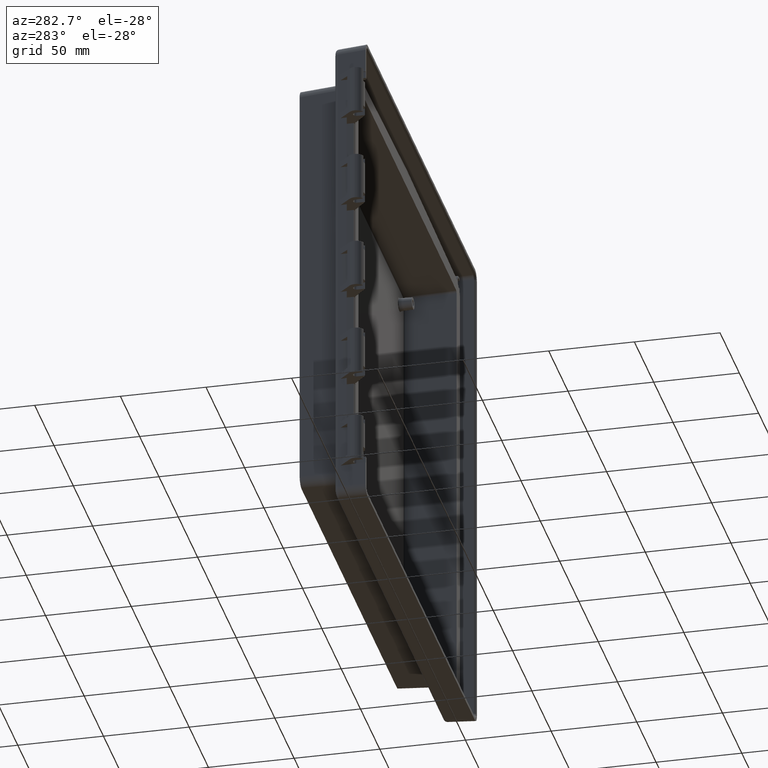
[diagram: clean part render]
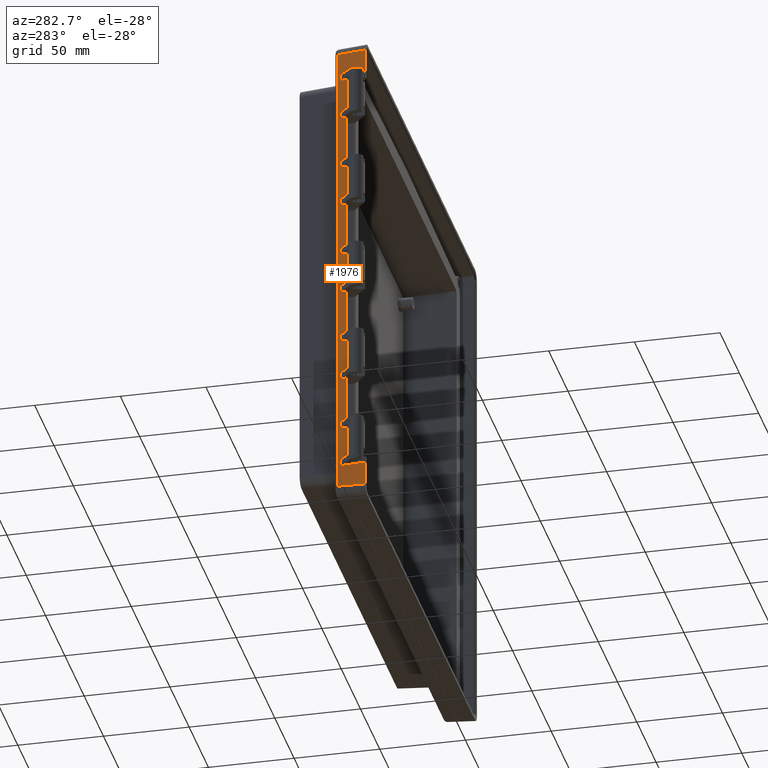
[diagram: same view with one face highlighted and labeled with its STEP entity id]
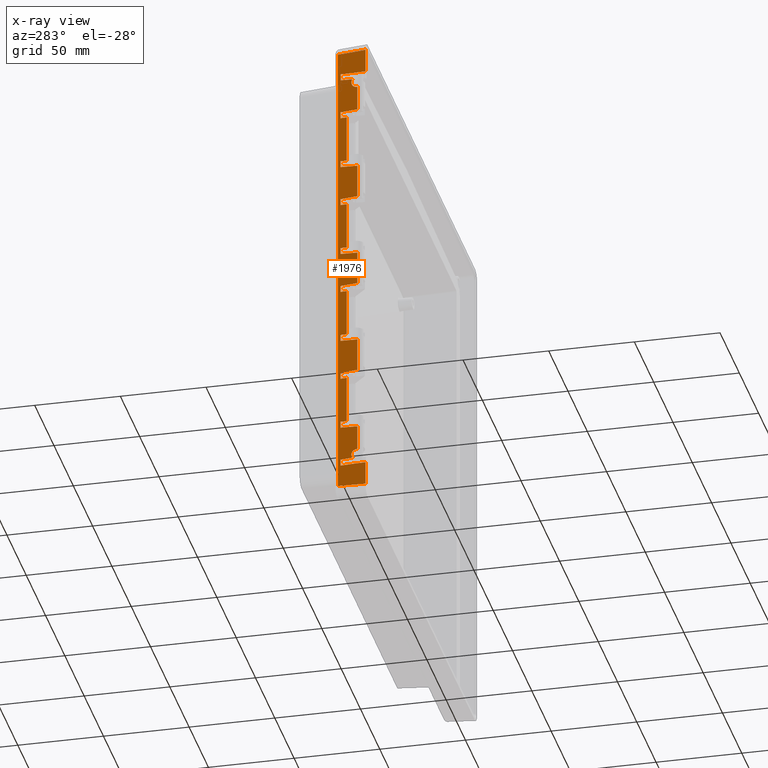
[diagram: x-ray of the same camera — body ghosted, the highlighted face saturated]
A machine part, auxiliary view. The second image highlights one B-rep face of the part: STEP entity #1976.
The next image is the same camera in x-ray: the body ghosted, the highlighted face saturated — about 0% of this face is hidden behind the body in this view.
In plain terms, the highlighted planar face has unit normal (-0.9986, 0.0523, 0).
Its self-contained STEP definition (entity closure, byte-faithful):
#516 = EDGE_CURVE ( 'NONE', #600, #594, #9780, .T. ) ;
#524 = VERTEX_POINT ( 'NONE', #9822 ) ;
#530 = VERTEX_POINT ( 'NONE', #9812 ) ;
#532 = EDGE_CURVE ( 'NONE', #530, #524, #9811, .T. ) ;
#540 = VERTEX_POINT ( 'NONE', #9856 ) ;
#546 = VERTEX_POINT ( 'NONE', #9846 ) ;
#548 = EDGE_CURVE ( 'NONE', #546, #540, #9845, .T. ) ;
#571 = VERTEX_POINT ( 'NONE', #9926 ) ;
#573 = EDGE_CURVE ( 'NONE', #571, #574, #9925, .T. ) ;
#574 = VERTEX_POINT ( 'NONE', #9921 ) ;
#578 = VERTEX_POINT ( 'NONE', #9915 ) ;
#584 = VERTEX_POINT ( 'NONE', #9905 ) ;
#586 = EDGE_CURVE ( 'NONE', #584, #578, #9904, .T. ) ;
#594 = VERTEX_POINT ( 'NONE', #9947 ) ;
#600 = VERTEX_POINT ( 'NONE', #9937 ) ;
#632 = EDGE_CURVE ( 'NONE', #574, #633, #10010, .T. ) ;
#633 = VERTEX_POINT ( 'NONE', #10003 ) ;
#730 = VERTEX_POINT ( 'NONE', #10189 ) ;
#732 = EDGE_CURVE ( 'NONE', #730, #752, #10188, .T. ) ;
#752 = VERTEX_POINT ( 'NONE', #10214 ) ;
#754 = EDGE_CURVE ( 'NONE', #755, #752, #10213, .T. ) ;
#755 = VERTEX_POINT ( 'NONE', #10272 ) ;
#819 = EDGE_CURVE ( 'NONE', #820, #19180, #10339, .T. ) ;
#820 = VERTEX_POINT ( 'NONE', #10404 ) ;
#827 = VERTEX_POINT ( 'NONE', #10391 ) ;
#834 = VERTEX_POINT ( 'NONE', #10423 ) ;
#892 = EDGE_CURVE ( 'NONE', #834, #827, #10525, .T. ) ;
#897 = VERTEX_POINT ( 'NONE', #10513 ) ;
#904 = VERTEX_POINT ( 'NONE', #10535 ) ;
#906 = EDGE_CURVE ( 'NONE', #904, #897, #10534, .T. ) ;
#966 = EDGE_CURVE ( 'NONE', #967, #968, #10634, .T. ) ;
#967 = VERTEX_POINT ( 'NONE', #10689 ) ;
#968 = VERTEX_POINT ( 'NONE', #10688 ) ;
#988 = VERTEX_POINT ( 'NONE', #10701 ) ;
#1050 = VERTEX_POINT ( 'NONE', #10873 ) ;
#1052 = EDGE_CURVE ( 'NONE', #1050, #988, #10872, .T. ) ;
#1056 = EDGE_CURVE ( 'NONE', #1057, #1058, #10866, .T. ) ;
#1057 = VERTEX_POINT ( 'NONE', #10857 ) ;
#1058 = VERTEX_POINT ( 'NONE', #10856 ) ;
#1131 = EDGE_CURVE ( 'NONE', #1132, #1133, #10989, .T. ) ;
#1132 = VERTEX_POINT ( 'NONE', #10980 ) ;
#1133 = VERTEX_POINT ( 'NONE', #10979 ) ;
#1141 = EDGE_CURVE ( 'NONE', #1142, #19085, #11035, .T. ) ;
#1142 = VERTEX_POINT ( 'NONE', #11026 ) ;
#1196 = EDGE_CURVE ( 'NONE', #1197, #1198, #11124, .T. ) ;
#1197 = VERTEX_POINT ( 'NONE', #11120 ) ;
#1198 = VERTEX_POINT ( 'NONE', #11119 ) ;
#1211 = VERTEX_POINT ( 'NONE', #11142 ) ;
#1218 = VERTEX_POINT ( 'NONE', #11174 ) ;
#1220 = EDGE_CURVE ( 'NONE', #1218, #1211, #11227, .T. ) ;
#1246 = VERTEX_POINT ( 'NONE', #11236 ) ;
#1248 = EDGE_CURVE ( 'NONE', #834, #1246, #11235, .T. ) ;
#1261 = EDGE_CURVE ( 'NONE', #1262, #820, #11265, .T. ) ;
#1262 = VERTEX_POINT ( 'NONE', #11261 ) ;
#1300 = EDGE_CURVE ( 'NONE', #571, #1262, #11336, .T. ) ;
#1328 = EDGE_CURVE ( 'NONE', #1329, #1057, #11404, .T. ) ;
#1329 = VERTEX_POINT ( 'NONE', #11400 ) ;
#1338 = VERTEX_POINT ( 'NONE', #11440 ) ;
#1340 = EDGE_CURVE ( 'NONE', #1050, #1338, #11439, .T. ) ;
#1360 = EDGE_CURVE ( 'NONE', #1361, #1132, #11522, .T. ) ;
#1361 = VERTEX_POINT ( 'NONE', #11518 ) ;
#1370 = VERTEX_POINT ( 'NONE', #11503 ) ;
#1422 = EDGE_CURVE ( 'NONE', #755, #1370, #11645, .T. ) ;
#1428 = EDGE_CURVE ( 'NONE', #1142, #1370, #11671, .T. ) ;
#1446 = EDGE_CURVE ( 'NONE', #1447, #1197, #11699, .T. ) ;
#1447 = VERTEX_POINT ( 'NONE', #11692 ) ;
#1456 = VERTEX_POINT ( 'NONE', #11677 ) ;
#1478 = EDGE_CURVE ( 'NONE', #1479, #967, #11776, .T. ) ;
#1479 = VERTEX_POINT ( 'NONE', #11772 ) ;
#1488 = VERTEX_POINT ( 'NONE', #11757 ) ;
#1516 = EDGE_CURVE ( 'NONE', #1218, #1456, #11851, .T. ) ;
#1548 = EDGE_CURVE ( 'NONE', #904, #1488, #12139, .T. ) ;
#1686 = VERTEX_POINT ( 'NONE', #12496 ) ;
#1688 = EDGE_CURVE ( 'NONE', #12035, #1686, #12495, .T. ) ;
#1720 = EDGE_CURVE ( 'NONE', #1721, #12009, #12550, .T. ) ;
#1721 = VERTEX_POINT ( 'NONE', #12546 ) ;
#1886 = EDGE_CURVE ( 'NONE', #1940, #1941, #12917, .T. ) ;
#1887 = ORIENTED_EDGE ( 'NONE', *, *, #1052, .F. ) ;
#1894 = EDGE_CURVE ( 'NONE', #1895, #1896, #12907, .T. ) ;
#1895 = VERTEX_POINT ( 'NONE', #12930 ) ;
#1896 = VERTEX_POINT ( 'NONE', #12929 ) ;
#1933 = EDGE_CURVE ( 'NONE', #1934, #19068, #13067, .T. ) ;
#1934 = VERTEX_POINT ( 'NONE', #13095 ) ;
#1940 = VERTEX_POINT ( 'NONE', #13136 ) ;
#1941 = VERTEX_POINT ( 'NONE', #13132 ) ;
#1950 = EDGE_CURVE ( 'NONE', #1951, #1952, #13158, .T. ) ;
#1951 = VERTEX_POINT ( 'NONE', #13184 ) ;
#1952 = VERTEX_POINT ( 'NONE', #13175 ) ;
#1961 = EDGE_CURVE ( 'NONE', #19045, #1962, #13233, .T. ) ;
#1962 = VERTEX_POINT ( 'NONE', #13229 ) ;
#1965 = ORIENTED_EDGE ( 'NONE', *, *, #19175, .F. ) ;
#1966 = ORIENTED_EDGE ( 'NONE', *, *, #19155, .F. ) ;
#1967 = ORIENTED_EDGE ( 'NONE', *, *, #1933, .F. ) ;
#1968 = ORIENTED_EDGE ( 'NONE', *, *, #2039, .T. ) ;
#1969 = VERTEX_POINT ( 'NONE', #13280 ) ;
#1976 = ADVANCED_FACE ( 'NONE', ( #13272 ), #13271, .T. ) ;
#1977 = EDGE_LOOP ( 'NONE', ( #1978, #1979, #1980, #2050, #19154, #19153, #19151, #19150, #19148, #1965, #1966, #1967, #1968, #2040, #2042, #2043, #2044, #2046, #2047, #2049, #2027, #2028, #2031, #2033, #2034, #2037, #1887, #2016, #2017, #2019, #2020, #2022, #2023, #2024, #2097, #2005, #2006, #2009, #2011, #2012, #2013, #2015, #2085, #2087, #2088, #2089, #2092, #2094, #2095, #2075, #2077, #2078, #2079, #2081, #2082, #2084, #2063, #2064, #2067, #2069, #2070, #2071, #2072, #2073, #2052, #2053, #2054, #2055, #2056 ) ) ;
#1978 = ORIENTED_EDGE ( 'NONE', *, *, #1720, .T. ) ;
#1979 = ORIENTED_EDGE ( 'NONE', *, *, #12033, .F. ) ;
#1980 = ORIENTED_EDGE ( 'NONE', *, *, #1688, .T. ) ;
#2004 = EDGE_CURVE ( 'NONE', #1952, #2026, #13315, .T. ) ;
#2005 = ORIENTED_EDGE ( 'NONE', *, *, #1950, .F. ) ;
#2006 = ORIENTED_EDGE ( 'NONE', *, *, #2007, .T. ) ;
#2007 = EDGE_CURVE ( 'NONE', #1951, #2008, #12892, .T. ) ;
#2008 = VERTEX_POINT ( 'NONE', #13086 ) ;
#2009 = ORIENTED_EDGE ( 'NONE', *, *, #2010, .F. ) ;
#2010 = EDGE_CURVE ( 'NONE', #897, #2008, #12890, .T. ) ;
#2011 = ORIENTED_EDGE ( 'NONE', *, *, #906, .F. ) ;
#2012 = ORIENTED_EDGE ( 'NONE', *, *, #1548, .T. ) ;
#2013 = ORIENTED_EDGE ( 'NONE', *, *, #2014, .F. ) ;
#2014 = EDGE_CURVE ( 'NONE', #578, #1488, #13358, .T. ) ;
#2015 = ORIENTED_EDGE ( 'NONE', *, *, #586, .F. ) ;
#2016 = ORIENTED_EDGE ( 'NONE', *, *, #1340, .T. ) ;
#2017 = ORIENTED_EDGE ( 'NONE', *, *, #2018, .F. ) ;
#2018 = EDGE_CURVE ( 'NONE', #594, #1338, #13354, .T. ) ;
#2019 = ORIENTED_EDGE ( 'NONE', *, *, #516, .F. ) ;
#2020 = ORIENTED_EDGE ( 'NONE', *, *, #2021, .F. ) ;
#2021 = EDGE_CURVE ( 'NONE', #1479, #600, #13350, .T. ) ;
#2022 = ORIENTED_EDGE ( 'NONE', *, *, #1478, .T. ) ;
#2023 = ORIENTED_EDGE ( 'NONE', *, *, #966, .T. ) ;
#2024 = ORIENTED_EDGE ( 'NONE', *, *, #2025, .T. ) ;
#2025 = EDGE_CURVE ( 'NONE', #968, #2026, #13346, .T. ) ;
#2026 = VERTEX_POINT ( 'NONE', #13345 ) ;
#2027 = ORIENTED_EDGE ( 'NONE', *, *, #1056, .T. ) ;
#2028 = ORIENTED_EDGE ( 'NONE', *, *, #2029, .T. ) ;
#2029 = EDGE_CURVE ( 'NONE', #1058, #2030, #13339, .T. ) ;
#2030 = VERTEX_POINT ( 'NONE', #13338 ) ;
#2031 = ORIENTED_EDGE ( 'NONE', *, *, #2032, .F. ) ;
#2032 = EDGE_CURVE ( 'NONE', #1941, #2030, #13340, .T. ) ;
#2033 = ORIENTED_EDGE ( 'NONE', *, *, #1886, .F. ) ;
#2034 = ORIENTED_EDGE ( 'NONE', *, *, #2035, .T. ) ;
#2035 = EDGE_CURVE ( 'NONE', #1940, #2036, #13375, .T. ) ;
#2036 = VERTEX_POINT ( 'NONE', #13374 ) ;
#2037 = ORIENTED_EDGE ( 'NONE', *, *, #2038, .F. ) ;
#2038 = EDGE_CURVE ( 'NONE', #988, #2036, #13369, .T. ) ;
#2039 = EDGE_CURVE ( 'NONE', #1934, #1969, #13364, .T. ) ;
#2040 = ORIENTED_EDGE ( 'NONE', *, *, #2041, .F. ) ;
#2041 = EDGE_CURVE ( 'NONE', #827, #1969, #13408, .T. ) ;
#2042 = ORIENTED_EDGE ( 'NONE', *, *, #892, .F. ) ;
#2043 = ORIENTED_EDGE ( 'NONE', *, *, #1248, .T. ) ;
#2044 = ORIENTED_EDGE ( 'NONE', *, *, #2045, .F. ) ;
#2045 = EDGE_CURVE ( 'NONE', #524, #1246, #13407, .T. ) ;
#2046 = ORIENTED_EDGE ( 'NONE', *, *, #532, .F. ) ;
#2047 = ORIENTED_EDGE ( 'NONE', *, *, #2048, .F. ) ;
#2048 = EDGE_CURVE ( 'NONE', #1329, #530, #13399, .T. ) ;
#2049 = ORIENTED_EDGE ( 'NONE', *, *, #1328, .T. ) ;
#2050 = ORIENTED_EDGE ( 'NONE', *, *, #2051, .T. ) ;
#2051 = EDGE_CURVE ( 'NONE', #1686, #633, #13395, .T. ) ;
#2052 = ORIENTED_EDGE ( 'NONE', *, *, #1428, .T. ) ;
#2053 = ORIENTED_EDGE ( 'NONE', *, *, #1422, .F. ) ;
#2054 = ORIENTED_EDGE ( 'NONE', *, *, #754, .T. ) ;
#2055 = ORIENTED_EDGE ( 'NONE', *, *, #732, .F. ) ;
#2056 = ORIENTED_EDGE ( 'NONE', *, *, #2057, .T. ) ;
#2057 = EDGE_CURVE ( 'NONE', #730, #1721, #13391, .T. ) ;
#2063 = ORIENTED_EDGE ( 'NONE', *, *, #1131, .T. ) ;
#2064 = ORIENTED_EDGE ( 'NONE', *, *, #2065, .T. ) ;
#2065 = EDGE_CURVE ( 'NONE', #1133, #2066, #13432, .T. ) ;
#2066 = VERTEX_POINT ( 'NONE', #13431 ) ;
#2067 = ORIENTED_EDGE ( 'NONE', *, *, #2068, .F. ) ;
#2068 = EDGE_CURVE ( 'NONE', #1962, #2066, #13433, .T. ) ;
#2069 = ORIENTED_EDGE ( 'NONE', *, *, #1961, .F. ) ;
#2070 = ORIENTED_EDGE ( 'NONE', *, *, #19061, .F. ) ;
#2071 = ORIENTED_EDGE ( 'NONE', *, *, #8061, .F. ) ;
#2072 = ORIENTED_EDGE ( 'NONE', *, *, #19079, .F. ) ;
#2073 = ORIENTED_EDGE ( 'NONE', *, *, #1141, .F. ) ;
#2074 = EDGE_CURVE ( 'NONE', #1895, #2096, #13423, .T. ) ;
#2075 = ORIENTED_EDGE ( 'NONE', *, *, #2076, .F. ) ;
#2076 = EDGE_CURVE ( 'NONE', #1211, #2096, #13418, .T. ) ;
#2077 = ORIENTED_EDGE ( 'NONE', *, *, #1220, .F. ) ;
#2078 = ORIENTED_EDGE ( 'NONE', *, *, #1516, .T. ) ;
#2079 = ORIENTED_EDGE ( 'NONE', *, *, #2080, .F. ) ;
#2080 = EDGE_CURVE ( 'NONE', #540, #1456, #13413, .T. ) ;
#2081 = ORIENTED_EDGE ( 'NONE', *, *, #548, .F. ) ;
#2082 = ORIENTED_EDGE ( 'NONE', *, *, #2083, .F. ) ;
#2083 = EDGE_CURVE ( 'NONE', #1361, #546, #13463, .T. ) ;
#2084 = ORIENTED_EDGE ( 'NONE', *, *, #1360, .T. ) ;
#2085 = ORIENTED_EDGE ( 'NONE', *, *, #2086, .F. ) ;
#2086 = EDGE_CURVE ( 'NONE', #1447, #584, #13459, .T. ) ;
#2087 = ORIENTED_EDGE ( 'NONE', *, *, #1446, .T. ) ;
#2088 = ORIENTED_EDGE ( 'NONE', *, *, #1196, .T. ) ;
#2089 = ORIENTED_EDGE ( 'NONE', *, *, #2090, .T. ) ;
#2090 = EDGE_CURVE ( 'NONE', #1198, #2091, #13454, .T. ) ;
#2091 = VERTEX_POINT ( 'NONE', #13453 ) ;
#2092 = ORIENTED_EDGE ( 'NONE', *, *, #2093, .F. ) ;
#2093 = EDGE_CURVE ( 'NONE', #1896, #2091, #13455, .T. ) ;
#2094 = ORIENTED_EDGE ( 'NONE', *, *, #1894, .F. ) ;
#2095 = ORIENTED_EDGE ( 'NONE', *, *, #2074, .T. ) ;
#2096 = VERTEX_POINT ( 'NONE', #13445 ) ;
#2097 = ORIENTED_EDGE ( 'NONE', *, *, #2004, .F. ) ;
#7997 = VERTEX_POINT ( 'NONE', #28046 ) ;
#8061 = EDGE_CURVE ( 'NONE', #8062, #7997, #28246, .T. ) ;
#8062 = VERTEX_POINT ( 'NONE', #28245 ) ;
#9772 = DIRECTION ( 'NONE',  ( 0.0000000000000000000, 1.554852818176321500E-017, -1.000000000000000000 ) ) ;
#9773 = VECTOR ( 'NONE', #9772, 1000.000000000000000 ) ;
#9774 = CARTESIAN_POINT ( 'NONE',  ( -143.6879957965046500, 3.091224350881810700, -27.99999999999996800 ) ) ;
#9780 = LINE ( 'NONE', #9774, #9773 ) ;
#9808 = DIRECTION ( 'NONE',  ( 0.0000000000000000000, 1.554852818176323000E-017, -1.000000000000000000 ) ) ;
#9809 = VECTOR ( 'NONE', #9808, 1000.000000000000000 ) ;
#9810 = CARTESIAN_POINT ( 'NONE',  ( -143.6879957965046800, 3.091224350881811600, -83.99999999999992900 ) ) ;
#9811 = LINE ( 'NONE', #9810, #9809 ) ;
#9812 = CARTESIAN_POINT ( 'NONE',  ( -143.6879957965044800, 3.091224350880998900, -70.05395752175230900 ) ) ;
#9822 = CARTESIAN_POINT ( 'NONE',  ( -143.6879957965047100, 3.091224350880925600, -97.94604247824769100 ) ) ;
#9842 = DIRECTION ( 'NONE',  ( 0.0000000000000000000, 0.0000000000000000000, -1.000000000000000000 ) ) ;
#9843 = VECTOR ( 'NONE', #9842, 1000.000000000000000 ) ;
#9844 = CARTESIAN_POINT ( 'NONE',  ( -143.6879957965049600, 3.091224350881709000, 83.99999999999980100 ) ) ;
#9845 = LINE ( 'NONE', #9844, #9843 ) ;
#9846 = CARTESIAN_POINT ( 'NONE',  ( -143.6879957965044000, 3.091224350881020200, 97.94604247824749200 ) ) ;
#9856 = CARTESIAN_POINT ( 'NONE',  ( -143.6879957965047700, 3.091224350880907000, 70.05395752175211000 ) ) ;
#9901 = DIRECTION ( 'NONE',  ( 0.0000000000000000000, 0.0000000000000000000, -1.000000000000000000 ) ) ;
#9902 = VECTOR ( 'NONE', #9901, 1000.000000000000000 ) ;
#9903 = CARTESIAN_POINT ( 'NONE',  ( -143.6879957965049600, 3.091224350881709000, 27.99999999999998200 ) ) ;
#9904 = LINE ( 'NONE', #9903, #9902 ) ;
#9905 = CARTESIAN_POINT ( 'NONE',  ( -143.6879957965044200, 3.091224350881024700, 41.94604247824748500 ) ) ;
#9915 = CARTESIAN_POINT ( 'NONE',  ( -143.6879957965047700, 3.091224350880913600, 14.05395752175211200 ) ) ;
#9921 = CARTESIAN_POINT ( 'NONE',  ( -144.0124641157774500, -3.099999999999245100, -125.9999999999996700 ) ) ;
#9922 = DIRECTION ( 'NONE',  ( 0.0000000000000000000, 0.0000000000000000000, -1.000000000000000000 ) ) ;
#9923 = VECTOR ( 'NONE', #9922, 1000.000000000000000 ) ;
#9924 = CARTESIAN_POINT ( 'NONE',  ( -144.0124641157774500, -3.099999999999245100, -125.9729446493608100 ) ) ;
#9925 = LINE ( 'NONE', #9924, #9923 ) ;
#9926 = CARTESIAN_POINT ( 'NONE',  ( -144.0124641157774500, -3.099999999999245100, -125.9458892987219700 ) ) ;
#9937 = CARTESIAN_POINT ( 'NONE',  ( -143.6879957965044500, 3.091224350881015300, -14.05395752175251500 ) ) ;
#9947 = CARTESIAN_POINT ( 'NONE',  ( -143.6879957965047400, 3.091224350880915800, -41.94604247824788200 ) ) ;
#10003 = CARTESIAN_POINT ( 'NONE',  ( -144.2692622342640000, -8.000000000000000000, -126.0000000000000000 ) ) ;
#10004 = DIRECTION ( 'NONE',  ( -0.05233595624295343800, -0.9986295347545733900, 0.0000000000000000000 ) ) ;
#10005 = VECTOR ( 'NONE', #10004, 1000.000000000000000 ) ;
#10006 = CARTESIAN_POINT ( 'NONE',  ( -144.1408631750210000, -5.550000000000832000, -126.0000000000000000 ) ) ;
#10010 = LINE ( 'NONE', #10006, #10005 ) ;
#10185 = DIRECTION ( 'NONE',  ( 0.05233595624293966400, 0.9986295347545741700, 0.0000000000000000000 ) ) ;
#10186 = VECTOR ( 'NONE', #10185, 1000.000000000000100 ) ;
#10187 = CARTESIAN_POINT ( 'NONE',  ( -144.1408631750208300, -5.549999999999636600, 126.0000000000000000 ) ) ;
#10188 = LINE ( 'NONE', #10187, #10186 ) ;
#10189 = CARTESIAN_POINT ( 'NONE',  ( -144.2692622342640000, -8.000000000000000000, 126.0000000000000000 ) ) ;
#10210 = DIRECTION ( 'NONE',  ( 0.0000000000000000000, 0.0000000000000000000, 1.000000000000000000 ) ) ;
#10211 = VECTOR ( 'NONE', #10210, 1000.000000000000000 ) ;
#10212 = CARTESIAN_POINT ( 'NONE',  ( -144.0124641157773900, -3.099999999999295300, 125.9729446493612100 ) ) ;
#10213 = LINE ( 'NONE', #10212, #10211 ) ;
#10214 = CARTESIAN_POINT ( 'NONE',  ( -144.0124641157773900, -3.099999999999295300, 126.0000000000000000 ) ) ;
#10272 = CARTESIAN_POINT ( 'NONE',  ( -144.0124641157773900, -3.099999999999295300, 125.9458892987223900 ) ) ;
#10336 = DIRECTION ( 'NONE',  ( -0.05226442768871258900, -0.9972646886342373400, 0.05226442768871456700 ) ) ;
#10337 = VECTOR ( 'NONE', #10336, 1000.000000000000100 ) ;
#10338 = CARTESIAN_POINT ( 'NONE',  ( -143.6794443393783100, 3.254395873189117600, -122.1705556606212000 ) ) ;
#10339 = LINE ( 'NONE', #10338, #10337 ) ;
#10391 = CARTESIAN_POINT ( 'NONE',  ( -144.0176754571400000, -3.000561683138390100, -102.1571355472182500 ) ) ;
#10404 = CARTESIAN_POINT ( 'NONE',  ( -143.4952572665772300, 6.768894585419558600, -122.3547427334223100 ) ) ;
#10423 = CARTESIAN_POINT ( 'NONE',  ( -143.4952572665772000, 6.768894585419557700, -101.6452572665770600 ) ) ;
#10513 = CARTESIAN_POINT ( 'NONE',  ( -144.0176754571400000, -3.000561683138390100, 9.842864452781578100 ) ) ;
#10520 = CARTESIAN_POINT ( 'NONE',  ( -144.0176754571400000, -3.000561683138390100, -102.1571355472182500 ) ) ;
#10521 = CARTESIAN_POINT ( 'NONE',  ( -143.8400712044743000, 0.2557448930623055800, -101.9865969780916300 ) ) ;
#10522 = CARTESIAN_POINT ( 'NONE',  ( -143.6676642355257600, 3.512319739240932700, -101.8159271223343700 ) ) ;
#10523 = CARTESIAN_POINT ( 'NONE',  ( -143.4952572665772000, 6.768894585419557700, -101.6452572665770600 ) ) ;
#10525 = B_SPLINE_CURVE_WITH_KNOTS ( 'NONE', 3,
 ( #10523, #10522, #10521, #10520 ),
 .UNSPECIFIED., .F., .F.,
 ( 4, 4 ),
 ( 0.0000000000000000000, 1.000000000000000000 ),
 .UNSPECIFIED. ) ;
#10534 = B_SPLINE_CURVE_WITH_KNOTS ( 'NONE', 3,
 ( #10599, #10598, #10597, #10596 ),
 .UNSPECIFIED., .F., .F.,
 ( 4, 4 ),
 ( 0.0000000000000000000, 1.000000000000000000 ),
 .UNSPECIFIED. ) ;
#10535 = CARTESIAN_POINT ( 'NONE',  ( -143.4952572665772000, 6.768894585419556800, 10.35474273342282500 ) ) ;
#10596 = CARTESIAN_POINT ( 'NONE',  ( -144.0176754571400000, -3.000561683138390100, 9.842864452781578100 ) ) ;
#10597 = CARTESIAN_POINT ( 'NONE',  ( -143.8400712044743000, 0.2557448930623064100, 10.01340302190820500 ) ) ;
#10598 = CARTESIAN_POINT ( 'NONE',  ( -143.6676642355257600, 3.512319739240935300, 10.18407287766543800 ) ) ;
#10599 = CARTESIAN_POINT ( 'NONE',  ( -143.4952572665772000, 6.768894585419556800, 10.35474273342282500 ) ) ;
#10632 = VECTOR ( 'NONE', #10690, 1000.000000000000100 ) ;
#10633 = CARTESIAN_POINT ( 'NONE',  ( -143.7512692751373600, 1.883894456382976900, -10.09873786193101400 ) ) ;
#10634 = LINE ( 'NONE', #10633, #10632 ) ;
#10688 = CARTESIAN_POINT ( 'NONE',  ( -144.0176754571400000, -3.000561683138390100, -9.842761499614376000 ) ) ;
#10689 = CARTESIAN_POINT ( 'NONE',  ( -143.4952572665772000, 6.768894585419556800, -10.35474273342288100 ) ) ;
#10690 = DIRECTION ( 'NONE',  ( -0.05226443166861414300, -0.9972647645752443800, 0.05226297464782353500 ) ) ;
#10701 = CARTESIAN_POINT ( 'NONE',  ( -144.0176754571400000, -3.000561683138390100, -46.15713554721845200 ) ) ;
#10856 = CARTESIAN_POINT ( 'NONE',  ( -144.0176754571400000, -3.000561683138390100, -65.84276149961438300 ) ) ;
#10857 = CARTESIAN_POINT ( 'NONE',  ( -143.4952572665772000, 6.768894585419557700, -66.35474273342282500 ) ) ;
#10858 = DIRECTION ( 'NONE',  ( -0.05226443166861414300, -0.9972647645752443800, 0.05226297464782372200 ) ) ;
#10859 = VECTOR ( 'NONE', #10858, 1000.000000000000100 ) ;
#10860 = CARTESIAN_POINT ( 'NONE',  ( -143.7512692751373600, 1.883894456382977800, -66.09873786193095700 ) ) ;
#10866 = LINE ( 'NONE', #10860, #10859 ) ;
#10867 = CARTESIAN_POINT ( 'NONE',  ( -144.0176754571400000, -3.000561683138390100, -46.15713554721845200 ) ) ;
#10868 = CARTESIAN_POINT ( 'NONE',  ( -143.8400712044743000, 0.2557448930623055800, -45.98659697809182500 ) ) ;
#10869 = CARTESIAN_POINT ( 'NONE',  ( -143.6676642355257600, 3.512319739240938000, -45.81592712233459300 ) ) ;
#10870 = CARTESIAN_POINT ( 'NONE',  ( -143.4952572665772000, 6.768894585419557700, -45.64525726657711900 ) ) ;
#10872 = B_SPLINE_CURVE_WITH_KNOTS ( 'NONE', 3,
 ( #10870, #10869, #10868, #10867 ),
 .UNSPECIFIED., .F., .F.,
 ( 4, 4 ),
 ( 0.0000000000000000000, 1.000000000000000000 ),
 .UNSPECIFIED. ) ;
#10873 = CARTESIAN_POINT ( 'NONE',  ( -143.4952572665772000, 6.768894585419557700, -45.64525726657711900 ) ) ;
#10979 = CARTESIAN_POINT ( 'NONE',  ( -144.0176754571390100, -3.000561683138390100, 102.1572385003858300 ) ) ;
#10980 = CARTESIAN_POINT ( 'NONE',  ( -143.4952572665771700, 6.768894585419555900, 101.6452572665773900 ) ) ;
#10981 = DIRECTION ( 'NONE',  ( -0.05226443166861450400, -0.9972647645752453800, 0.05226297464780423800 ) ) ;
#10982 = VECTOR ( 'NONE', #10981, 1000.000000000000000 ) ;
#10983 = CARTESIAN_POINT ( 'NONE',  ( -143.7512692751373300, 1.883894456383004500, 101.9012621380691600 ) ) ;
#10989 = LINE ( 'NONE', #10983, #10982 ) ;
#11026 = CARTESIAN_POINT ( 'NONE',  ( -143.4952572665771700, 6.768894585419555000, 122.3547427334226800 ) ) ;
#11027 = DIRECTION ( 'NONE',  ( -0.05226442768871308900, -0.9972646886342373400, -0.05226442768871308900 ) ) ;
#11028 = VECTOR ( 'NONE', #11027, 1000.000000000000200 ) ;
#11029 = CARTESIAN_POINT ( 'NONE',  ( -143.6794443393782800, 3.254395873189146900, 122.1705556606215900 ) ) ;
#11035 = LINE ( 'NONE', #11029, #11028 ) ;
#11119 = CARTESIAN_POINT ( 'NONE',  ( -144.0176754571390100, -3.000561683138390100, 46.15723850038562400 ) ) ;
#11120 = CARTESIAN_POINT ( 'NONE',  ( -143.4952572665771700, 6.768894585419555900, 45.64525726657707600 ) ) ;
#11121 = DIRECTION ( 'NONE',  ( -0.05226443166861442100, -0.9972647645752443800, 0.05226297464782257000 ) ) ;
#11122 = VECTOR ( 'NONE', #11121, 1000.000000000000100 ) ;
#11123 = CARTESIAN_POINT ( 'NONE',  ( -143.7512692751373300, 1.883894456383002200, 45.90126213806893700 ) ) ;
#11124 = LINE ( 'NONE', #11123, #11122 ) ;
#11142 = CARTESIAN_POINT ( 'NONE',  ( -144.0176754571400000, -3.000561683138390100, 65.84286445278155500 ) ) ;
#11174 = CARTESIAN_POINT ( 'NONE',  ( -143.4952572665771700, 6.768894585419555900, 66.35474273342272500 ) ) ;
#11223 = CARTESIAN_POINT ( 'NONE',  ( -144.0176754571400000, -3.000561683138390100, 65.84286445278155500 ) ) ;
#11224 = CARTESIAN_POINT ( 'NONE',  ( -143.8400712044743000, 0.2557448930623042500, 66.01340302190817500 ) ) ;
#11225 = CARTESIAN_POINT ( 'NONE',  ( -143.6676642355257600, 3.512319739240933100, 66.18407287766541500 ) ) ;
#11226 = CARTESIAN_POINT ( 'NONE',  ( -143.4952572665771700, 6.768894585419555900, 66.35474273342272500 ) ) ;
#11227 = B_SPLINE_CURVE_WITH_KNOTS ( 'NONE', 3,
 ( #11226, #11225, #11224, #11223 ),
 .UNSPECIFIED., .F., .F.,
 ( 4, 4 ),
 ( 0.0000000000000000000, 1.000000000000000000 ),
 .UNSPECIFIED. ) ;
#11232 = DIRECTION ( 'NONE',  ( 0.0000000000000000000, 0.0000000000000000000, 1.000000000000000000 ) ) ;
#11233 = VECTOR ( 'NONE', #11232, 1000.000000000000000 ) ;
#11234 = CARTESIAN_POINT ( 'NONE',  ( -143.4952572665772000, 6.768894585419557700, -99.76355288604810300 ) ) ;
#11235 = LINE ( 'NONE', #11234, #11233 ) ;
#11236 = CARTESIAN_POINT ( 'NONE',  ( -143.4952572665772000, 6.768894585419238800, -97.88184850551924400 ) ) ;
#11261 = CARTESIAN_POINT ( 'NONE',  ( -143.4952572665772300, 6.768894585419558600, -126.1181514944802200 ) ) ;
#11262 = DIRECTION ( 'NONE',  ( 0.0000000000000000000, 0.0000000000000000000, 1.000000000000000000 ) ) ;
#11263 = VECTOR ( 'NONE', #11262, 1000.000000000000000 ) ;
#11264 = CARTESIAN_POINT ( 'NONE',  ( -143.4952572665772300, 6.768894585419558600, -124.2364471139512700 ) ) ;
#11265 = LINE ( 'NONE', #11264, #11263 ) ;
#11333 = DIRECTION ( 'NONE',  ( 0.05232800705137903600, 0.9984778551437666300, -0.01742849579092482400 ) ) ;
#11334 = VECTOR ( 'NONE', #11333, 1000.000000000000100 ) ;
#11335 = CARTESIAN_POINT ( 'NONE',  ( -143.7538606911773500, 1.834447292710156500, -126.0320203966011100 ) ) ;
#11336 = LINE ( 'NONE', #11335, #11334 ) ;
#11400 = CARTESIAN_POINT ( 'NONE',  ( -143.4952572665769400, 6.768894585419500800, -70.11815149448075600 ) ) ;
#11401 = DIRECTION ( 'NONE',  ( 0.0000000000000000000, 0.0000000000000000000, 1.000000000000000000 ) ) ;
#11402 = VECTOR ( 'NONE', #11401, 1000.000000000000000 ) ;
#11403 = CARTESIAN_POINT ( 'NONE',  ( -143.4952572665770000, 6.768894585419549700, -68.23644711395169800 ) ) ;
#11404 = LINE ( 'NONE', #11403, #11402 ) ;
#11436 = DIRECTION ( 'NONE',  ( 0.0000000000000000000, 0.0000000000000000000, 1.000000000000000000 ) ) ;
#11437 = VECTOR ( 'NONE', #11436, 1000.000000000000000 ) ;
#11438 = CARTESIAN_POINT ( 'NONE',  ( -143.4952572665772000, 6.768894585419557700, -43.76355288604816000 ) ) ;
#11439 = LINE ( 'NONE', #11438, #11437 ) ;
#11440 = CARTESIAN_POINT ( 'NONE',  ( -143.4952572665772300, 6.768894585419206900, -41.88184850551944300 ) ) ;
#11503 = CARTESIAN_POINT ( 'NONE',  ( -143.4952572665771700, 6.768894585419555000, 126.1181514944806300 ) ) ;
#11518 = CARTESIAN_POINT ( 'NONE',  ( -143.4952572665768600, 6.768894585419506200, 97.88184850551904500 ) ) ;
#11519 = DIRECTION ( 'NONE',  ( 0.0000000000000000000, 0.0000000000000000000, 1.000000000000000000 ) ) ;
#11520 = VECTOR ( 'NONE', #11519, 1000.000000000000000 ) ;
#11521 = CARTESIAN_POINT ( 'NONE',  ( -143.4952572665770000, 6.768894585419549700, 99.76355288604851500 ) ) ;
#11522 = LINE ( 'NONE', #11521, #11520 ) ;
#11613 = DIRECTION ( 'NONE',  ( 0.05232800705137877900, 0.9984778551437666300, 0.01742849579092474500 ) ) ;
#11614 = VECTOR ( 'NONE', #11613, 1000.000000000000000 ) ;
#11615 = CARTESIAN_POINT ( 'NONE',  ( -143.7538606911772900, 1.834447292710129900, 126.0320203966015000 ) ) ;
#11645 = LINE ( 'NONE', #11615, #11614 ) ;
#11668 = DIRECTION ( 'NONE',  ( 0.0000000000000000000, 0.0000000000000000000, 1.000000000000000000 ) ) ;
#11669 = VECTOR ( 'NONE', #11668, 1000.000000000000000 ) ;
#11670 = CARTESIAN_POINT ( 'NONE',  ( -143.4952572665771700, 6.768894585419555000, 124.2364471139516600 ) ) ;
#11671 = LINE ( 'NONE', #11670, #11669 ) ;
#11677 = CARTESIAN_POINT ( 'NONE',  ( -143.4952572665772500, 6.768894585419079800, 70.11815149448055700 ) ) ;
#11692 = CARTESIAN_POINT ( 'NONE',  ( -143.4952572665768900, 6.768894585419476000, 41.88184850551904500 ) ) ;
#11693 = DIRECTION ( 'NONE',  ( 0.0000000000000000000, 0.0000000000000000000, 1.000000000000000000 ) ) ;
#11694 = VECTOR ( 'NONE', #11693, 1000.000000000000000 ) ;
#11695 = CARTESIAN_POINT ( 'NONE',  ( -143.4952572665770000, 6.768894585419549700, 43.76355288604821700 ) ) ;
#11699 = LINE ( 'NONE', #11695, #11694 ) ;
#11757 = CARTESIAN_POINT ( 'NONE',  ( -143.4952572665772500, 6.768894585419201500, 14.11815149448055200 ) ) ;
#11772 = CARTESIAN_POINT ( 'NONE',  ( -143.4952572665769100, 6.768894585419561200, -14.11815149448096000 ) ) ;
#11773 = DIRECTION ( 'NONE',  ( 0.0000000000000000000, 0.0000000000000000000, 1.000000000000000000 ) ) ;
#11774 = VECTOR ( 'NONE', #11773, 1000.000000000000000 ) ;
#11775 = CARTESIAN_POINT ( 'NONE',  ( -143.4952572665770000, 6.768894585419549700, -12.23644711395195700 ) ) ;
#11776 = LINE ( 'NONE', #11775, #11774 ) ;
#11848 = DIRECTION ( 'NONE',  ( 0.0000000000000000000, 0.0000000000000000000, 1.000000000000000000 ) ) ;
#11849 = VECTOR ( 'NONE', #11848, 1000.000000000000000 ) ;
#11850 = CARTESIAN_POINT ( 'NONE',  ( -143.4952572665771700, 6.768894585419555900, 68.23644711395171200 ) ) ;
#11851 = LINE ( 'NONE', #11850, #11849 ) ;
#12009 = VERTEX_POINT ( 'NONE', #28974 ) ;
#12033 = EDGE_CURVE ( 'NONE', #12035, #12009, #29103, .T. ) ;
#12035 = VERTEX_POINT ( 'NONE', #29099 ) ;
#12136 = DIRECTION ( 'NONE',  ( 0.0000000000000000000, 0.0000000000000000000, 1.000000000000000000 ) ) ;
#12137 = VECTOR ( 'NONE', #12136, 1000.000000000000000 ) ;
#12138 = CARTESIAN_POINT ( 'NONE',  ( -143.4952572665772000, 6.768894585419556800, 12.23644711395178300 ) ) ;
#12139 = LINE ( 'NONE', #12138, #12137 ) ;
#12492 = DIRECTION ( 'NONE',  ( -0.05226442768871517700, -0.9972646886342365600, -0.05226442768872707800 ) ) ;
#12493 = VECTOR ( 'NONE', #12492, 1000.000000000000100 ) ;
#12494 = CARTESIAN_POINT ( 'NONE',  ( -143.8426877657148000, 0.1395257418895113300, -139.5002253245646700 ) ) ;
#12495 = LINE ( 'NONE', #12494, #12493 ) ;
#12496 = CARTESIAN_POINT ( 'NONE',  ( -144.2692622342640000, -8.000000000000000000, -139.9267997931140100 ) ) ;
#12546 = CARTESIAN_POINT ( 'NONE',  ( -144.2692622342640000, -8.000000000000000000, 139.9267997931139900 ) ) ;
#12547 = DIRECTION ( 'NONE',  ( 0.05226442768871348400, 0.9972646886342373400, -0.05226442768871348400 ) ) ;
#12548 = VECTOR ( 'NONE', #12547, 1000.000000000000200 ) ;
#12549 = CARTESIAN_POINT ( 'NONE',  ( -143.8426877657150000, 0.1395257418895139400, 139.5002253245644700 ) ) ;
#12550 = LINE ( 'NONE', #12549, #12548 ) ;
#12666 = CARTESIAN_POINT ( 'NONE',  ( -144.0124641157776500, -3.099999999999633300, 9.818767942111128000 ) ) ;
#12887 = CARTESIAN_POINT ( 'NONE',  ( -144.0138974461930000, -3.127349573577357300, 9.813548972692821300 ) ) ;
#12888 = CARTESIAN_POINT ( 'NONE',  ( -144.0153307766085200, -3.154699147155068500, 9.808330003274523500 ) ) ;
#12889 = CARTESIAN_POINT ( 'NONE',  ( -144.0133888302737500, -3.182185315135733100, 9.799999999999830200 ) ) ;
#12890 = B_SPLINE_CURVE_WITH_KNOTS ( 'NONE', 3,
 ( #13311, #13361, #13360, #13359 ),
 .UNSPECIFIED., .F., .F.,
 ( 4, 4 ),
 ( 0.0000000000000000000, 1.000000000000000000 ),
 .UNSPECIFIED. ) ;
#12892 = B_SPLINE_CURVE_WITH_KNOTS ( 'NONE', 3,
 ( #12889, #12888, #12887, #12666 ),
 .UNSPECIFIED., .F., .F.,
 ( 4, 4 ),
 ( 0.0000000000000000000, 1.000000000000000000 ),
 .UNSPECIFIED. ) ;
#12907 = LINE ( 'NONE', #12941, #12940 ) ;
#12914 = DIRECTION ( 'NONE',  ( 0.0000000000000000000, 2.212669133322435100E-017, -1.000000000000000000 ) ) ;
#12915 = VECTOR ( 'NONE', #12914, 1000.000000000000000 ) ;
#12916 = CARTESIAN_POINT ( 'NONE',  ( -144.0176754571398300, -3.199438316861596700, -56.00005154717800300 ) ) ;
#12917 = LINE ( 'NONE', #12916, #12915 ) ;
#12929 = CARTESIAN_POINT ( 'NONE',  ( -144.0176754571399700, -3.199438316864240800, 46.19999999999979700 ) ) ;
#12930 = CARTESIAN_POINT ( 'NONE',  ( -144.0133888302737500, -3.182185315135726000, 65.79999999999979800 ) ) ;
#12939 = DIRECTION ( 'NONE',  ( 0.0000000000000000000, 2.212669133322419300E-017, -1.000000000000000000 ) ) ;
#12940 = VECTOR ( 'NONE', #12939, 1000.000000000000000 ) ;
#12941 = CARTESIAN_POINT ( 'NONE',  ( -144.0176754571398000, -3.199438316861598500, 55.99994845282192600 ) ) ;
#13067 = LINE ( 'NONE', #13098, #13097 ) ;
#13086 = CARTESIAN_POINT ( 'NONE',  ( -144.0124641157776500, -3.099999999999633300, 9.818767942111128000 ) ) ;
#13095 = CARTESIAN_POINT ( 'NONE',  ( -144.0133888302737500, -3.182185315135759800, -102.2000000000000000 ) ) ;
#13096 = DIRECTION ( 'NONE',  ( 0.0000000000000000000, 0.0000000000000000000, -1.000000000000000000 ) ) ;
#13097 = VECTOR ( 'NONE', #13096, 1000.000000000000000 ) ;
#13098 = CARTESIAN_POINT ( 'NONE',  ( -144.0176754571398300, -3.199438316861596300, -109.4641538519124400 ) ) ;
#13132 = CARTESIAN_POINT ( 'NONE',  ( -144.0176754571399700, -3.199438316864240800, -65.80000000000019600 ) ) ;
#13136 = CARTESIAN_POINT ( 'NONE',  ( -144.0133888302737500, -3.182185315135726000, -46.20000000000020200 ) ) ;
#13158 = LINE ( 'NONE', #13187, #13186 ) ;
#13175 = CARTESIAN_POINT ( 'NONE',  ( -144.0176754571399700, -3.199438316864240800, -9.800000000000169500 ) ) ;
#13184 = CARTESIAN_POINT ( 'NONE',  ( -144.0133888302737500, -3.182185315135733100, 9.799999999999830200 ) ) ;
#13185 = DIRECTION ( 'NONE',  ( -1.416108245326352700E-015, 0.0000000000000000000, -1.000000000000000000 ) ) ;
#13186 = VECTOR ( 'NONE', #13185, 1000.000000000000000 ) ;
#13187 = CARTESIAN_POINT ( 'NONE',  ( -144.0176754571398300, -3.199438316861597600, -5.154717801821723200E-005 ) ) ;
#13229 = CARTESIAN_POINT ( 'NONE',  ( -144.0176754571399700, -3.199438316864240800, 102.2000000000000000 ) ) ;
#13230 = DIRECTION ( 'NONE',  ( 0.0000000000000000000, 0.0000000000000000000, -1.000000000000000000 ) ) ;
#13231 = VECTOR ( 'NONE', #13230, 1000.000000000000000 ) ;
#13232 = CARTESIAN_POINT ( 'NONE',  ( -144.0176754571393200, -3.199438316861625200, 109.4581979014200100 ) ) ;
#13233 = LINE ( 'NONE', #13232, #13231 ) ;
#13270 = AXIS2_PLACEMENT_3D ( 'NONE', #13310, #13309, #13308 ) ;
#13271 = PLANE ( 'NONE',  #13270 ) ;
#13272 = FACE_OUTER_BOUND ( 'NONE', #1977, .T. ) ;
#13280 = CARTESIAN_POINT ( 'NONE',  ( -144.0124641157776800, -3.099999999999401900, -102.1812320578887100 ) ) ;
#13308 = DIRECTION ( 'NONE',  ( -0.05233595624294390400, -0.9986295347545739400, 0.0000000000000000000 ) ) ;
#13309 = DIRECTION ( 'NONE',  ( -0.9986295347545739400, 0.05233595624294390400, 2.389442893438010500E-016 ) ) ;
#13310 = CARTESIAN_POINT ( 'NONE',  ( -143.8499999999999900, 0.0000000000000000000, 145.0000000000000000 ) ) ;
#13311 = CARTESIAN_POINT ( 'NONE',  ( -144.0176754571400000, -3.000561683138390100, 9.842864452781578100 ) ) ;
#13312 = DIRECTION ( 'NONE',  ( 0.05233595624290949400, 0.9986295347545756100, 0.0000000000000000000 ) ) ;
#13313 = VECTOR ( 'NONE', #13312, 1000.000000000000200 ) ;
#13314 = CARTESIAN_POINT ( 'NONE',  ( -144.0150697864587800, -3.149719158432876800, -9.800000000000169500 ) ) ;
#13315 = LINE ( 'NONE', #13314, #13313 ) ;
#13337 = CARTESIAN_POINT ( 'NONE',  ( -144.0176754571400000, -3.000561683138390100, -65.84276149961438300 ) ) ;
#13338 = CARTESIAN_POINT ( 'NONE',  ( -144.0124644233035300, -3.102136458883453200, -65.80886482129915300 ) ) ;
#13339 = B_SPLINE_CURVE_WITH_KNOTS ( 'NONE', 3,
 ( #13337, #13381, #13380, #13379 ),
 .UNSPECIFIED., .F., .F.,
 ( 4, 4 ),
 ( 0.0000000000000000000, 1.000000000000000000 ),
 .UNSPECIFIED. ) ;
#13340 = LINE ( 'NONE', #13378, #13377 ) ;
#13341 = CARTESIAN_POINT ( 'NONE',  ( -144.0124641157775600, -3.100000000001513100, -9.800000000000169500 ) ) ;
#13342 = CARTESIAN_POINT ( 'NONE',  ( -144.0108861031180300, -3.069889724750359600, -9.826064560844422100 ) ) ;
#13343 = CARTESIAN_POINT ( 'NONE',  ( -144.0090835412755400, -3.035494795845539600, -9.834399479090565800 ) ) ;
#13344 = CARTESIAN_POINT ( 'NONE',  ( -144.0176754571400000, -3.000561683138390100, -9.842761499614376000 ) ) ;
#13345 = CARTESIAN_POINT ( 'NONE',  ( -144.0124641157775600, -3.100000000001513100, -9.800000000000169500 ) ) ;
#13346 = B_SPLINE_CURVE_WITH_KNOTS ( 'NONE', 3,
 ( #13344, #13343, #13342, #13341 ),
 .UNSPECIFIED., .F., .F.,
 ( 4, 4 ),
 ( 0.0000000000000000000, 1.000000000000000000 ),
 .UNSPECIFIED. ) ;
#13347 = DIRECTION ( 'NONE',  ( -0.05232800705138910400, -0.9984778551437660800, 0.01742849579092234400 ) ) ;
#13348 = VECTOR ( 'NONE', #13347, 1000.000000000000100 ) ;
#13349 = CARTESIAN_POINT ( 'NONE',  ( -143.5916265315406700, 4.930059468150288300, -14.08605450811673700 ) ) ;
#13350 = LINE ( 'NONE', #13349, #13348 ) ;
#13351 = DIRECTION ( 'NONE',  ( 0.05232800705138520400, 0.9984778551437663000, 0.01742849579092119900 ) ) ;
#13352 = VECTOR ( 'NONE', #13351, 1000.000000000000100 ) ;
#13353 = CARTESIAN_POINT ( 'NONE',  ( -143.5916265315409800, 4.930059468150061800, -41.91394549188366600 ) ) ;
#13354 = LINE ( 'NONE', #13353, #13352 ) ;
#13355 = DIRECTION ( 'NONE',  ( 0.05232800705138525300, 0.9984778551437663000, 0.01742849579092168100 ) ) ;
#13356 = VECTOR ( 'NONE', #13355, 1000.000000000000100 ) ;
#13357 = CARTESIAN_POINT ( 'NONE',  ( -143.5916265315410100, 4.930059468150057400, 14.08605450811633000 ) ) ;
#13358 = LINE ( 'NONE', #13357, #13356 ) ;
#13359 = CARTESIAN_POINT ( 'NONE',  ( -144.0124641157776500, -3.099999999999633300, 9.818767942111128000 ) ) ;
#13360 = CARTESIAN_POINT ( 'NONE',  ( -144.0142012295651200, -3.066853894379221000, 9.826800112334609600 ) ) ;
#13361 = CARTESIAN_POINT ( 'NONE',  ( -144.0159383433525600, -3.033707788758806400, 9.834832282558094700 ) ) ;
#13362 = CARTESIAN_POINT ( 'NONE',  ( -144.0153307766085500, -3.154699147155002300, -102.1916699967253100 ) ) ;
#13363 = CARTESIAN_POINT ( 'NONE',  ( -144.0133888302737500, -3.182185315135759800, -102.2000000000000000 ) ) ;
#13364 = B_SPLINE_CURVE_WITH_KNOTS ( 'NONE', 3,
 ( #13363, #13362, #13410, #13409 ),
 .UNSPECIFIED., .F., .F.,
 ( 4, 4 ),
 ( 0.0000000000000000000, 1.000000000000000000 ),
 .UNSPECIFIED. ) ;
#13365 = CARTESIAN_POINT ( 'NONE',  ( -144.0124641157776800, -3.099999999999528500, -46.18123205788889900 ) ) ;
#13366 = CARTESIAN_POINT ( 'NONE',  ( -144.0142012295651200, -3.066853894379147200, -46.17319988766541900 ) ) ;
#13367 = CARTESIAN_POINT ( 'NONE',  ( -144.0159383433525600, -3.033707788758767800, -46.16516771744193200 ) ) ;
#13368 = CARTESIAN_POINT ( 'NONE',  ( -144.0176754571400000, -3.000561683138390100, -46.15713554721845200 ) ) ;
#13369 = B_SPLINE_CURVE_WITH_KNOTS ( 'NONE', 3,
 ( #13368, #13367, #13366, #13365 ),
 .UNSPECIFIED., .F., .F.,
 ( 4, 4 ),
 ( 0.0000000000000000000, 1.000000000000000000 ),
 .UNSPECIFIED. ) ;
#13370 = CARTESIAN_POINT ( 'NONE',  ( -144.0124641157776800, -3.099999999999528500, -46.18123205788889900 ) ) ;
#13371 = CARTESIAN_POINT ( 'NONE',  ( -144.0138974461930300, -3.127349573577283600, -46.18645102730720000 ) ) ;
#13372 = CARTESIAN_POINT ( 'NONE',  ( -144.0153307766085500, -3.154699147155026300, -46.19166999672550100 ) ) ;
#13373 = CARTESIAN_POINT ( 'NONE',  ( -144.0133888302737500, -3.182185315135726000, -46.20000000000020200 ) ) ;
#13374 = CARTESIAN_POINT ( 'NONE',  ( -144.0124641157776800, -3.099999999999528500, -46.18123205788889900 ) ) ;
#13375 = B_SPLINE_CURVE_WITH_KNOTS ( 'NONE', 3,
 ( #13373, #13372, #13371, #13370 ),
 .UNSPECIFIED., .F., .F.,
 ( 4, 4 ),
 ( 0.0000000000000000000, 1.000000000000000000 ),
 .UNSPECIFIED. ) ;
#13376 = DIRECTION ( 'NONE',  ( 0.05233595624311071500, 0.9986295347545651700, 0.0000000000000000000 ) ) ;
#13377 = VECTOR ( 'NONE', #13376, 1000.000000000000000 ) ;
#13378 = CARTESIAN_POINT ( 'NONE',  ( -144.0150697864587800, -3.149719158433068200, -65.80000000000019600 ) ) ;
#13379 = CARTESIAN_POINT ( 'NONE',  ( -144.0124644233035300, -3.102136458883453200, -65.80886482129915300 ) ) ;
#13380 = CARTESIAN_POINT ( 'NONE',  ( -144.0108861031180500, -3.069889724750583400, -65.82606456084428700 ) ) ;
#13381 = CARTESIAN_POINT ( 'NONE',  ( -144.0090835412755700, -3.035494795845645300, -65.83439947909049300 ) ) ;
#13388 = DIRECTION ( 'NONE',  ( 0.0000000000000000000, 0.0000000000000000000, 1.000000000000000000 ) ) ;
#13389 = VECTOR ( 'NONE', #13388, 1000.000000000000000 ) ;
#13390 = CARTESIAN_POINT ( 'NONE',  ( -144.2692622342640000, -8.000000000000000000, 132.9633998965569800 ) ) ;
#13391 = LINE ( 'NONE', #13390, #13389 ) ;
#13392 = DIRECTION ( 'NONE',  ( 0.0000000000000000000, 0.0000000000000000000, 1.000000000000000000 ) ) ;
#13393 = VECTOR ( 'NONE', #13392, 1000.000000000000000 ) ;
#13394 = CARTESIAN_POINT ( 'NONE',  ( -144.2692622342640000, -8.000000000000000000, -132.9633998965570100 ) ) ;
#13395 = LINE ( 'NONE', #13394, #13393 ) ;
#13396 = DIRECTION ( 'NONE',  ( -0.05232800705138972200, -0.9984778551437660800, 0.01742849579092207700 ) ) ;
#13397 = VECTOR ( 'NONE', #13396, 1000.000000000000200 ) ;
#13398 = CARTESIAN_POINT ( 'NONE',  ( -143.5916265315407300, 4.930059468150250100, -70.08605450811653300 ) ) ;
#13399 = LINE ( 'NONE', #13398, #13397 ) ;
#13400 = DIRECTION ( 'NONE',  ( 0.05232800705138488500, 0.9984778551437663000, 0.01742849579092297500 ) ) ;
#13401 = VECTOR ( 'NONE', #13400, 1000.000000000000000 ) ;
#13402 = CARTESIAN_POINT ( 'NONE',  ( -143.5916265315409500, 4.930059468150082200, -97.91394549188346700 ) ) ;
#13403 = CARTESIAN_POINT ( 'NONE',  ( -144.0124641157776800, -3.099999999999401900, -102.1812320578887100 ) ) ;
#13404 = CARTESIAN_POINT ( 'NONE',  ( -144.0142012295651200, -3.066853894379064600, -102.1731998876652200 ) ) ;
#13405 = CARTESIAN_POINT ( 'NONE',  ( -144.0159383433525600, -3.033707788758727400, -102.1651677174417300 ) ) ;
#13406 = CARTESIAN_POINT ( 'NONE',  ( -144.0176754571400000, -3.000561683138390100, -102.1571355472182500 ) ) ;
#13407 = LINE ( 'NONE', #13402, #13401 ) ;
#13408 = B_SPLINE_CURVE_WITH_KNOTS ( 'NONE', 3,
 ( #13406, #13405, #13404, #13403 ),
 .UNSPECIFIED., .F., .F.,
 ( 4, 4 ),
 ( 0.0000000000000000000, 1.000000000000000000 ),
 .UNSPECIFIED. ) ;
#13409 = CARTESIAN_POINT ( 'NONE',  ( -144.0124641157776800, -3.099999999999401900, -102.1812320578887100 ) ) ;
#13410 = CARTESIAN_POINT ( 'NONE',  ( -144.0138974461930000, -3.127349573577205900, -102.1864510273070200 ) ) ;
#13411 = VECTOR ( 'NONE', #13464, 1000.000000000000100 ) ;
#13412 = CARTESIAN_POINT ( 'NONE',  ( -143.5916265315410100, 4.930059468149993400, 70.08605450811633400 ) ) ;
#13413 = LINE ( 'NONE', #13412, #13411 ) ;
#13414 = CARTESIAN_POINT ( 'NONE',  ( -144.0124641157776800, -3.099999999999526700, 65.81876794211109400 ) ) ;
#13415 = CARTESIAN_POINT ( 'NONE',  ( -144.0142012295651200, -3.066853894379148100, 65.82680011233458100 ) ) ;
#13416 = CARTESIAN_POINT ( 'NONE',  ( -144.0159383433525600, -3.033707788758768700, 65.83483228255806800 ) ) ;
#13417 = CARTESIAN_POINT ( 'NONE',  ( -144.0176754571400000, -3.000561683138390100, 65.84286445278155500 ) ) ;
#13418 = B_SPLINE_CURVE_WITH_KNOTS ( 'NONE', 3,
 ( #13417, #13416, #13415, #13414 ),
 .UNSPECIFIED., .F., .F.,
 ( 4, 4 ),
 ( 0.0000000000000000000, 1.000000000000000000 ),
 .UNSPECIFIED. ) ;
#13419 = CARTESIAN_POINT ( 'NONE',  ( -144.0124641157776800, -3.099999999999526700, 65.81876794211109400 ) ) ;
#13420 = CARTESIAN_POINT ( 'NONE',  ( -144.0138974461930000, -3.127349573577285800, 65.81354897269280000 ) ) ;
#13421 = CARTESIAN_POINT ( 'NONE',  ( -144.0153307766085200, -3.154699147155028500, 65.80833000327450600 ) ) ;
#13422 = CARTESIAN_POINT ( 'NONE',  ( -144.0133888302737500, -3.182185315135726000, 65.79999999999979800 ) ) ;
#13423 = B_SPLINE_CURVE_WITH_KNOTS ( 'NONE', 3,
 ( #13422, #13421, #13420, #13419 ),
 .UNSPECIFIED., .F., .F.,
 ( 4, 4 ),
 ( 0.0000000000000000000, 1.000000000000000000 ),
 .UNSPECIFIED. ) ;
#13424 = DIRECTION ( 'NONE',  ( 0.05233595624313221900, 0.9986295347545639500, 0.0000000000000000000 ) ) ;
#13425 = VECTOR ( 'NONE', #13424, 1000.000000000000200 ) ;
#13426 = CARTESIAN_POINT ( 'NONE',  ( -144.0150697864585000, -3.149719158428322600, 102.2000000000000000 ) ) ;
#13427 = CARTESIAN_POINT ( 'NONE',  ( -144.0124641157770500, -3.099999999992404400, 102.2000000000000000 ) ) ;
#13428 = CARTESIAN_POINT ( 'NONE',  ( -144.0108861031176800, -3.069889724744574400, 102.1739354391550600 ) ) ;
#13429 = CARTESIAN_POINT ( 'NONE',  ( -144.0090835412753400, -3.035494795842634800, 102.1656005209092100 ) ) ;
#13430 = CARTESIAN_POINT ( 'NONE',  ( -144.0176754571390100, -3.000561683138390100, 102.1572385003858300 ) ) ;
#13431 = CARTESIAN_POINT ( 'NONE',  ( -144.0124641157770500, -3.099999999992404400, 102.2000000000000000 ) ) ;
#13432 = B_SPLINE_CURVE_WITH_KNOTS ( 'NONE', 3,
 ( #13430, #13429, #13428, #13427 ),
 .UNSPECIFIED., .F., .F.,
 ( 4, 4 ),
 ( 0.0000000000000000000, 1.000000000000000000 ),
 .UNSPECIFIED. ) ;
#13433 = LINE ( 'NONE', #13426, #13425 ) ;
#13445 = CARTESIAN_POINT ( 'NONE',  ( -144.0124641157776800, -3.099999999999526700, 65.81876794211109400 ) ) ;
#13446 = DIRECTION ( 'NONE',  ( 0.05233595624301203000, 0.9986295347545702800, 0.0000000000000000000 ) ) ;
#13447 = VECTOR ( 'NONE', #13446, 1000.000000000000100 ) ;
#13448 = CARTESIAN_POINT ( 'NONE',  ( -144.0150697864585000, -3.149719158428208000, 46.19999999999979700 ) ) ;
#13449 = CARTESIAN_POINT ( 'NONE',  ( -144.0124644233030400, -3.102136458873994600, 46.19113517869993000 ) ) ;
#13450 = CARTESIAN_POINT ( 'NONE',  ( -144.0108861031177100, -3.069889724744444800, 46.17393543915445500 ) ) ;
#13451 = CARTESIAN_POINT ( 'NONE',  ( -144.0090835412753700, -3.035494795842562900, 46.16560052090883900 ) ) ;
#13452 = CARTESIAN_POINT ( 'NONE',  ( -144.0176754571390100, -3.000561683138390100, 46.15723850038562400 ) ) ;
#13453 = CARTESIAN_POINT ( 'NONE',  ( -144.0124644233030400, -3.102136458873994600, 46.19113517869993000 ) ) ;
#13454 = B_SPLINE_CURVE_WITH_KNOTS ( 'NONE', 3,
 ( #13452, #13451, #13450, #13449 ),
 .UNSPECIFIED., .F., .F.,
 ( 4, 4 ),
 ( 0.0000000000000000000, 1.000000000000000000 ),
 .UNSPECIFIED. ) ;
#13455 = LINE ( 'NONE', #13448, #13447 ) ;
#13456 = DIRECTION ( 'NONE',  ( -0.05232800705139044300, -0.9984778551437659700, 0.01742849579092231600 ) ) ;
#13457 = VECTOR ( 'NONE', #13456, 1000.000000000000200 ) ;
#13458 = CARTESIAN_POINT ( 'NONE',  ( -143.5916265315406700, 4.930059468150250100, 41.91394549188326100 ) ) ;
#13459 = LINE ( 'NONE', #13458, #13457 ) ;
#13460 = DIRECTION ( 'NONE',  ( -0.05232800705138995800, -0.9984778551437660800, 0.01742849579092214900 ) ) ;
#13461 = VECTOR ( 'NONE', #13460, 1000.000000000000100 ) ;
#13462 = CARTESIAN_POINT ( 'NONE',  ( -143.5916265315406100, 4.930059468150263400, 97.91394549188326800 ) ) ;
#13463 = LINE ( 'NONE', #13462, #13461 ) ;
#13464 = DIRECTION ( 'NONE',  ( 0.05232800705138687700, 0.9984778551437661900, 0.01742849579092363800 ) ) ;
#19045 = VERTEX_POINT ( 'NONE', #29625 ) ;
#19061 = EDGE_CURVE ( 'NONE', #7997, #19045, #29899, .T. ) ;
#19068 = VERTEX_POINT ( 'NONE', #29898 ) ;
#19079 = EDGE_CURVE ( 'NONE', #19085, #8062, #29974, .T. ) ;
#19085 = VERTEX_POINT ( 'NONE', #30030 ) ;
#19148 = ORIENTED_EDGE ( 'NONE', *, *, #819, .T. ) ;
#19150 = ORIENTED_EDGE ( 'NONE', *, *, #1261, .T. ) ;
#19151 = ORIENTED_EDGE ( 'NONE', *, *, #1300, .T. ) ;
#19153 = ORIENTED_EDGE ( 'NONE', *, *, #573, .F. ) ;
#19154 = ORIENTED_EDGE ( 'NONE', *, *, #632, .F. ) ;
#19155 = EDGE_CURVE ( 'NONE', #19068, #19156, #31292, .T. ) ;
#19156 = VERTEX_POINT ( 'NONE', #31291 ) ;
#19175 = EDGE_CURVE ( 'NONE', #19156, #19180, #31379, .T. ) ;
#19180 = VERTEX_POINT ( 'NONE', #31396 ) ;
#28046 = CARTESIAN_POINT ( 'NONE',  ( -144.0053311983825500, -2.963895828208216600, 116.7287400852758300 ) ) ;
#28241 = CARTESIAN_POINT ( 'NONE',  ( -144.0053311983825500, -2.963895828208216600, 116.7287400852758300 ) ) ;
#28242 = CARTESIAN_POINT ( 'NONE',  ( -144.0023123067269600, -2.906291943886273100, 116.7288710701970600 ) ) ;
#28243 = CARTESIAN_POINT ( 'NONE',  ( -143.9992851093621800, -2.848688494902004800, 116.7290020788245900 ) ) ;
#28244 = CARTESIAN_POINT ( 'NONE',  ( -143.9962745231596800, -2.791084170342204000, 116.7291329916381000 ) ) ;
#28245 = CARTESIAN_POINT ( 'NONE',  ( -143.9962745231596800, -2.791084170342204000, 116.7291329916381000 ) ) ;
#28246 = B_SPLINE_CURVE_WITH_KNOTS ( 'NONE', 3,
 ( #28244, #28243, #28242, #28241 ),
 .UNSPECIFIED., .F., .F.,
 ( 4, 4 ),
 ( 0.0000000000000000000, 0.4231906588017125800 ),
 .UNSPECIFIED. ) ;
#28974 = CARTESIAN_POINT ( 'NONE',  ( -143.4161132971651700, 8.279051483778994600, 139.0736508560147500 ) ) ;
#29099 = CARTESIAN_POINT ( 'NONE',  ( -143.4161132971652300, 8.279051483778998100, -139.0736508560149800 ) ) ;
#29100 = DIRECTION ( 'NONE',  ( 1.995746530330515100E-016, -1.247341581456572000E-017, 1.000000000000000000 ) ) ;
#29101 = VECTOR ( 'NONE', #29100, 1000.000000000000000 ) ;
#29102 = CARTESIAN_POINT ( 'NONE',  ( -143.4161132971652000, 8.279051483778996400, -1.110223024625156500E-013 ) ) ;
#29103 = LINE ( 'NONE', #29102, #29101 ) ;
#29625 = CARTESIAN_POINT ( 'NONE',  ( -144.0176647852422300, -3.199615161626071300, 116.7248204434301900 ) ) ;
#29894 = CARTESIAN_POINT ( 'NONE',  ( -144.0176647852422300, -3.199615161626071300, 116.7248204434301900 ) ) ;
#29895 = CARTESIAN_POINT ( 'NONE',  ( -144.0135452736200500, -3.120924954165973400, 116.7283829317577800 ) ) ;
#29896 = CARTESIAN_POINT ( 'NONE',  ( -144.0094459510781300, -3.042409986830109300, 116.7285614966637900 ) ) ;
#29897 = CARTESIAN_POINT ( 'NONE',  ( -144.0053311983825500, -2.963895828208216600, 116.7287400852758300 ) ) ;
#29898 = CARTESIAN_POINT ( 'NONE',  ( -144.0176424679343100, -3.199563441022129900, -116.7234738474960900 ) ) ;
#29899 = B_SPLINE_CURVE_WITH_KNOTS ( 'NONE', 3,
 ( #29897, #29896, #29895, #29894 ),
 .UNSPECIFIED., .F., .F.,
 ( 4, 4 ),
 ( 0.4231906588017125800, 1.000000000000000000 ),
 .UNSPECIFIED. ) ;
#29937 = CARTESIAN_POINT ( 'NONE',  ( -143.8689678890338000, -0.3621669581276171200, 117.9619293993769400 ) ) ;
#29938 = CARTESIAN_POINT ( 'NONE',  ( -143.8665170249686300, -0.3153398935045227900, 118.0193512242616700 ) ) ;
#29939 = CARTESIAN_POINT ( 'NONE',  ( -143.8649956744499100, -0.2862784547633691600, 118.0567684660472000 ) ) ;
#29940 = CARTESIAN_POINT ( 'NONE',  ( -143.8607419499927900, -0.2050349293157383600, 118.1658057210518500 ) ) ;
#29941 = CARTESIAN_POINT ( 'NONE',  ( -143.8583194928465300, -0.1587854257880330400, 118.2341838521044700 ) ) ;
#29942 = CARTESIAN_POINT ( 'NONE',  ( -143.8520832212261100, -0.03974407934195264100, 118.4225050624433200 ) ) ;
#29943 = CARTESIAN_POINT ( 'NONE',  ( -143.8492877199527700, 0.01359076719217658200, 118.5253484490476700 ) ) ;
#29944 = CARTESIAN_POINT ( 'NONE',  ( -143.8455298307271700, 0.08529513217914729000, 118.6738821498386300 ) ) ;
#29945 = CARTESIAN_POINT ( 'NONE',  ( -143.8430817669292900, 0.1320113558632413600, 118.7776265804697700 ) ) ;
#29946 = CARTESIAN_POINT ( 'NONE',  ( -143.8379292897078300, 0.2302589038533554000, 119.0578879877318000 ) ) ;
#29947 = CARTESIAN_POINT ( 'NONE',  ( -143.8352513367873900, 0.2812854170554384700, 119.2335296532544800 ) ) ;
#29948 = CARTESIAN_POINT ( 'NONE',  ( -143.8332773039453200, 0.3187158956370037500, 119.4527899441618900 ) ) ;
#29949 = CARTESIAN_POINT ( 'NONE',  ( -143.8332388897115100, 0.3194441618833843700, 119.4571376069252400 ) ) ;
#29950 = CARTESIAN_POINT ( 'NONE',  ( -143.8331431426628900, 0.3212591825819340300, 119.4680935614204000 ) ) ;
#29951 = CARTESIAN_POINT ( 'NONE',  ( -143.8330019980693600, 0.3239344128710587900, 119.4844914328305100 ) ) ;
#29952 = CARTESIAN_POINT ( 'NONE',  ( -143.8326897748965200, 0.3298497396323681300, 119.5224986176559000 ) ) ;
#29953 = CARTESIAN_POINT ( 'NONE',  ( -143.8321320546500900, 0.3404064931092847200, 119.5974788099426900 ) ) ;
#29954 = CARTESIAN_POINT ( 'NONE',  ( -143.8317624954197000, 0.3473858543907471000, 119.6599217696428900 ) ) ;
#29955 = CARTESIAN_POINT ( 'NONE',  ( -143.8311527202052400, 0.3588820970641775600, 119.7822557999952100 ) ) ;
#29956 = CARTESIAN_POINT ( 'NONE',  ( -143.8309184896943700, 0.3632664775304102500, 119.8604023762582900 ) ) ;
#29957 = CARTESIAN_POINT ( 'NONE',  ( -143.8306162190868100, 0.3688289887518567700, 120.0839536805384900 ) ) ;
#29958 = CARTESIAN_POINT ( 'NONE',  ( -143.8309473584173500, 0.3624442954409403100, 120.2183995161122600 ) ) ;
#29959 = CARTESIAN_POINT ( 'NONE',  ( -143.8315291247275200, 0.3513710164346188200, 120.3394762578552200 ) ) ;
#29960 = CARTESIAN_POINT ( 'NONE',  ( -143.8315521999082900, 0.3509318021700059700, 120.3442240785563500 ) ) ;
#29961 = CARTESIAN_POINT ( 'NONE',  ( -143.8315849451219600, 0.3503085185792542700, 120.3508215337108900 ) ) ;
#29962 = CARTESIAN_POINT ( 'NONE',  ( -143.8316347807073900, 0.3493599204606309700, 120.3607046202730700 ) ) ;
#29963 = CARTESIAN_POINT ( 'NONE',  ( -143.8317560458153000, 0.3470516219265339400, 120.3836732426248100 ) ) ;
#29964 = CARTESIAN_POINT ( 'NONE',  ( -143.8320181679416700, 0.3420618270447962100, 120.4292409728143000 ) ) ;
#29965 = CARTESIAN_POINT ( 'NONE',  ( -143.8326181168812400, 0.3306402179592776200, 120.5188842943682900 ) ) ;
#29966 = CARTESIAN_POINT ( 'NONE',  ( -143.8332531115439700, 0.3185503282437150400, 120.5931184469491100 ) ) ;
#29967 = CARTESIAN_POINT ( 'NONE',  ( -143.8346611939602700, 0.2917406351706544100, 120.7380285086106800 ) ) ;
#29968 = CARTESIAN_POINT ( 'NONE',  ( -143.8357836399473200, 0.2703686173137042100, 120.8298813338549700 ) ) ;
#29969 = CARTESIAN_POINT ( 'NONE',  ( -143.8395338345422400, 0.1989623954621063400, 121.0908637972422800 ) ) ;
#29970 = CARTESIAN_POINT ( 'NONE',  ( -143.8425402795176400, 0.1417179428802034500, 121.2453070550661800 ) ) ;
#29971 = CARTESIAN_POINT ( 'NONE',  ( -143.8519356242206300, -0.03718890155936255300, 121.6522382911194900 ) ) ;
#29972 = CARTESIAN_POINT ( 'NONE',  ( -143.8585844719473000, -0.1638018824580656500, 121.8486070563927400 ) ) ;
#29973 = CARTESIAN_POINT ( 'NONE',  ( -143.8636314121793600, -0.2601028390412613000, 121.9863685878204800 ) ) ;
#29974 = B_SPLINE_CURVE_WITH_KNOTS ( 'NONE', 3,
 ( #29973, #29972, #29971, #29970, #29969, #29968, #29967, #29966, #29965, #29964, #29963, #29962, #29961, #29960, #29959, #29958, #29957, #29956, #29955, #29954, #29953, #29952, #29951, #29950, #29949, #29948, #29947, #29946, #29945, #29944, #29943, #29942, #29941, #29940, #29939, #29938, #29937, #30022, #30021, #30020, #30019, #30018, #30017, #30016, #30015, #30014, #30013, #30012, #30011, #30010, #30009, #30008, #30007, #30006, #30005, #30004, #30003, #30001 ),
 .UNSPECIFIED., .F., .F.,
 ( 4, 2, 2, 2, 1, 1, 1, 1, 2, 2, 2, 2, 1, 1, 1, 2, 2, 2, 2, 2, 2, 2, 1, 1, 2, 2, 2, 2, 1, 2, 2, 2, 2, 4 ),
 ( 0.0000000000000000000, 0.1250000000001549900, 0.1875000000002351500, 0.2187500000002729800, 0.2343750000002918500, 0.2421875000002991800, 0.2460937500003007600, 0.2480468750003015600, 0.2490234375003019300, 0.2500000000003023100, 0.3125000000002764500, 0.3437500000002606200, 0.3593750000002527400, 0.3671875000002512400, 0.3710937500002480800, 0.3730468750002464700, 0.3750000000002449200, 0.4375000000002458000, 0.5000000000002466900, 0.5625000000002475800, 0.5937500000002453600, 0.6093750000002423600, 0.6171875000002409200, 0.6210937500002399200, 0.6230468750002380300, 0.6250000000002361400, 0.6875000000002012800, 0.7187500000001855200, 0.7343750000001794100, 0.7421875000001764100, 0.7500000000001733100, 0.8750000000000859300, 0.9375000000000429700, 1.000000000000000000 ),
 .UNSPECIFIED. ) ;
#30001 = CARTESIAN_POINT ( 'NONE',  ( -143.9962745231596800, -2.791084170342204000, 116.7291329916381000 ) ) ;
#30003 = CARTESIAN_POINT ( 'NONE',  ( -143.9866960033603800, -2.608446698567283800, 116.7423311127263300 ) ) ;
#30004 = CARTESIAN_POINT ( 'NONE',  ( -143.9776364637186200, -2.435422354542741800, 116.7655427824718700 ) ) ;
#30005 = CARTESIAN_POINT ( 'NONE',  ( -143.9606768888982600, -2.111878441938328500, 116.8360123640843000 ) ) ;
#30006 = CARTESIAN_POINT ( 'NONE',  ( -143.9527761649198100, -1.961291545414814300, 116.8811567375239200 ) ) ;
#30007 = CARTESIAN_POINT ( 'NONE',  ( -143.9308941629442400, -1.544313387103311000, 117.0345555571482000 ) ) ;
#30008 = CARTESIAN_POINT ( 'NONE',  ( -143.9187618877740500, -1.313206397810163800, 117.1605021966801100 ) ) ;
#30009 = CARTESIAN_POINT ( 'NONE',  ( -143.9082052264312800, -1.111782548747335200, 117.2922656513039100 ) ) ;
#30010 = CARTESIAN_POINT ( 'NONE',  ( -143.9073928822227200, -1.096281459322556500, 117.3025405938960100 ) ) ;
#30011 = CARTESIAN_POINT ( 'NONE',  ( -143.9059511596736100, -1.068767621601141500, 117.3210931736997200 ) ) ;
#30012 = CARTESIAN_POINT ( 'NONE',  ( -143.9037804287681600, -1.027337380736816700, 117.3494533895937100 ) ) ;
#30013 = CARTESIAN_POINT ( 'NONE',  ( -143.9015875215120600, -0.9854720027411176800, 117.3794482110191400 ) ) ;
#30014 = CARTESIAN_POINT ( 'NONE',  ( -143.8971786968109500, -0.9012871068899812600, 117.4417253778550200 ) ) ;
#30015 = CARTESIAN_POINT ( 'NONE',  ( -143.8942085881645900, -0.8445540490736449500, 117.4862938168246600 ) ) ;
#30016 = CARTESIAN_POINT ( 'NONE',  ( -143.8852652525969800, -0.6736795178415037100, 117.6300080274634600 ) ) ;
#30017 = CARTESIAN_POINT ( 'NONE',  ( -143.8792563786292600, -0.5588086276732106000, 117.7392110237356100 ) ) ;
#30018 = CARTESIAN_POINT ( 'NONE',  ( -143.8732165271571500, -0.4433620652843825400, 117.8677727789321100 ) ) ;
#30019 = CARTESIAN_POINT ( 'NONE',  ( -143.8729343978454800, -0.4379695253717818500, 117.8738089047947900 ) ) ;
#30020 = CARTESIAN_POINT ( 'NONE',  ( -143.8724749138408200, -0.4291873501179872000, 117.8837108680872600 ) ) ;
#30021 = CARTESIAN_POINT ( 'NONE',  ( -143.8717913410523300, -0.4161224855527624900, 117.8985333360620600 ) ) ;
#30022 = CARTESIAN_POINT ( 'NONE',  ( -143.8702355345030200, -0.3863892994935774800, 117.9328952787423400 ) ) ;
#30030 = CARTESIAN_POINT ( 'NONE',  ( -143.8636314121793600, -0.2601028390412613000, 121.9863685878204800 ) ) ;
#31287 = CARTESIAN_POINT ( 'NONE',  ( -143.9953820823243400, -2.774154303860350900, -116.7333893963807300 ) ) ;
#31288 = CARTESIAN_POINT ( 'NONE',  ( -144.0034219469256700, -2.927188766863542600, -116.7287170096963500 ) ) ;
#31289 = CARTESIAN_POINT ( 'NONE',  ( -144.0105491105989600, -3.063313520618749400, -116.7284608127926500 ) ) ;
#31290 = CARTESIAN_POINT ( 'NONE',  ( -144.0176424679343100, -3.199563441022129900, -116.7234738474960900 ) ) ;
#31291 = CARTESIAN_POINT ( 'NONE',  ( -143.9953820823243400, -2.774154303860350900, -116.7333893963807300 ) ) ;
#31292 = B_SPLINE_CURVE_WITH_KNOTS ( 'NONE', 3,
 ( #31290, #31289, #31288, #31287 ),
 .UNSPECIFIED., .F., .F.,
 ( 4, 4 ),
 ( 0.0000000000000000000, 1.000000000000000000 ),
 .UNSPECIFIED. ) ;
#31352 = CARTESIAN_POINT ( 'NONE',  ( -143.8477793303686100, 0.04237150398505552100, -118.5856895471119100 ) ) ;
#31353 = CARTESIAN_POINT ( 'NONE',  ( -143.8481679307810700, 0.03495498370799456800, -118.5711157753970600 ) ) ;
#31354 = CARTESIAN_POINT ( 'NONE',  ( -143.8489543912144200, 0.01994359823199812200, -118.5420645362771000 ) ) ;
#31355 = CARTESIAN_POINT ( 'NONE',  ( -143.8505641148462100, -0.01078773109652840500, -118.4843540742670500 ) ) ;
#31356 = CARTESIAN_POINT ( 'NONE',  ( -143.8520061839941800, -0.03832747990020661500, -118.4355825851350900 ) ) ;
#31357 = CARTESIAN_POINT ( 'NONE',  ( -143.8549715059783100, -0.09496629553802003700, -118.3390199705739400 ) ) ;
#31358 = CARTESIAN_POINT ( 'NONE',  ( -143.8570565862741000, -0.1348036656836884800, -118.2759534070852500 ) ) ;
#31359 = CARTESIAN_POINT ( 'NONE',  ( -143.8636234135892900, -0.2602821522860205300, -118.0910495683881000 ) ) ;
#31360 = CARTESIAN_POINT ( 'NONE',  ( -143.8684165467690000, -0.3518849409200299200, -117.9735137412722100 ) ) ;
#31361 = CARTESIAN_POINT ( 'NONE',  ( -143.8839556030338300, -0.6487747044800338300, -117.6405412929295400 ) ) ;
#31362 = CARTESIAN_POINT ( 'NONE',  ( -143.8958374767956300, -0.8756801011024151200, -117.4456938924846400 ) ) ;
#31363 = CARTESIAN_POINT ( 'NONE',  ( -143.9092015269551200, -1.130674460551615700, -117.2789206954769100 ) ) ;
#31364 = CARTESIAN_POINT ( 'NONE',  ( -143.9094828270316700, -1.136041551800735000, -117.2754415260848600 ) ) ;
#31365 = CARTESIAN_POINT ( 'NONE',  ( -143.9101743956383400, -1.149235955760172300, -117.2669374118913200 ) ) ;
#31366 = CARTESIAN_POINT ( 'NONE',  ( -143.9112170539636400, -1.169127927848732100, -117.2542105140526000 ) ) ;
#31367 = CARTESIAN_POINT ( 'NONE',  ( -143.9136872287721200, -1.216248308965099500, -117.2247295846195700 ) ) ;
#31368 = CARTESIAN_POINT ( 'NONE',  ( -143.9158690363041700, -1.257857969786919700, -117.1998645604518700 ) ) ;
#31369 = CARTESIAN_POINT ( 'NONE',  ( -143.9203199545596300, -1.342730295239193500, -117.1507731858200300 ) ) ;
#31370 = CARTESIAN_POINT ( 'NONE',  ( -143.9234037669108900, -1.401518115621350100, -117.1188947301204900 ) ) ;
#31371 = CARTESIAN_POINT ( 'NONE',  ( -143.9330112382042200, -1.584636960737301000, -117.0266806884759500 ) ) ;
#31372 = CARTESIAN_POINT ( 'NONE',  ( -143.9398861604306600, -1.715631486441399500, -116.9698522340313800 ) ) ;
#31373 = CARTESIAN_POINT ( 'NONE',  ( -143.9545237785691800, -1.994600460695923800, -116.8706296461720300 ) ) ;
#31374 = CARTESIAN_POINT ( 'NONE',  ( -143.9622974453179700, -2.142782210299818900, -116.8281402897679200 ) ) ;
#31375 = CARTESIAN_POINT ( 'NONE',  ( -143.9784182946173100, -2.450351695214166200, -116.7636851635098800 ) ) ;
#31377 = CARTESIAN_POINT ( 'NONE',  ( -143.9867464078944300, -2.609275870465440800, -116.7429016819767600 ) ) ;
#31378 = CARTESIAN_POINT ( 'NONE',  ( -143.9953820823243400, -2.774154303860350900, -116.7333893963807300 ) ) ;
#31379 = B_SPLINE_CURVE_WITH_KNOTS ( 'NONE', 3,
 ( #31378, #31377, #31375, #31374, #31373, #31372, #31371, #31370, #31369, #31368, #31367, #31366, #31365, #31364, #31363, #31362, #31361, #31360, #31359, #31358, #31357, #31356, #31355, #31354, #31353, #31352, #31432, #31431, #31430, #31429, #31428, #31427, #31425, #31424, #31423, #31422, #31421, #31420, #31419, #31418, #31417, #31416, #31415, #31414, #31413, #31412, #31411, #31410, #31409, #31408, #31407, #31406, #31405, #31404, #31403, #31402, #31401, #31400, #31399 ),
 .UNSPECIFIED., .F., .F.,
 ( 4, 2, 2, 2, 2, 1, 1, 2, 2, 2, 2, 2, 1, 1, 1, 1, 2, 2, 2, 2, 2, 1, 1, 1, 2, 2, 2, 2, 1, 1, 1, 1, 2, 2, 2, 4 ),
 ( 0.002094992653986774800, 0.06250000000001848500, 0.1250000000000369700, 0.1875000000000554600, 0.2187500000000660900, 0.2343750000000730800, 0.2421875000000744700, 0.2460937500000769900, 0.2500000000000795500, 0.3750000000001012500, 0.4375000000001097500, 0.4687500000001141300, 0.4843750000001162400, 0.4921875000001172400, 0.4960937500001151900, 0.4980468750001169100, 0.4990234375001177400, 0.5000000000001185700, 0.5624999999998042700, 0.5937499999996471700, 0.6093749999995664600, 0.6171874999995280400, 0.6210937499995088400, 0.6230468749994975100, 0.6240234374994917400, 0.6249999999994860800, 0.6874999999992154100, 0.7187499999990830700, 0.7343749999990167900, 0.7421874999989837000, 0.7460937499989672700, 0.7480468749989623900, 0.7490234374989633800, 0.7499999999989644900, 0.8749999999994823000, 1.000000000000000000 ),
 .UNSPECIFIED. ) ;
#31396 = CARTESIAN_POINT ( 'NONE',  ( -143.8636314121794200, -0.2601028390413232000, -121.9863685878201000 ) ) ;
#31399 = CARTESIAN_POINT ( 'NONE',  ( -143.8636314121794200, -0.2601028390413232000, -121.9863685878201000 ) ) ;
#31400 = CARTESIAN_POINT ( 'NONE',  ( -143.8579964687316700, -0.1525817128888270800, -121.8328964696915100 ) ) ;
#31401 = CARTESIAN_POINT ( 'NONE',  ( -143.8512235084088800, -0.02363674656003832100, -121.6270648925981700 ) ) ;
#31402 = CARTESIAN_POINT ( 'NONE',  ( -143.8389477019106300, 0.2100511769950598700, -121.0818112337189700 ) ) ;
#31403 = CARTESIAN_POINT ( 'NONE',  ( -143.8334824128491500, 0.3140790123063527100, -120.7417858774588400 ) ) ;
#31404 = CARTESIAN_POINT ( 'NONE',  ( -143.8315305221731000, 0.3512325849255532600, -120.3345696730247700 ) ) ;
#31405 = CARTESIAN_POINT ( 'NONE',  ( -143.8315270005053900, 0.3512996388467195000, -120.3338169456979000 ) ) ;
#31406 = CARTESIAN_POINT ( 'NONE',  ( -143.8315085651243000, 0.3516506307397793700, -120.3298984366218500 ) ) ;
#31407 = CARTESIAN_POINT ( 'NONE',  ( -143.8314811300998600, 0.3521730286518693400, -120.3240116061773800 ) ) ;
#31408 = CARTESIAN_POINT ( 'NONE',  ( -143.8314186587259100, 0.3533629971556492800, -120.3102122044014200 ) ) ;
#31409 = CARTESIAN_POINT ( 'NONE',  ( -143.8313000303017800, 0.3556244348577375900, -120.2823595876115500 ) ) ;
#31410 = CARTESIAN_POINT ( 'NONE',  ( -143.8310891593560300, 0.3596517925801042700, -120.2256396658422900 ) ) ;
#31411 = CARTESIAN_POINT ( 'NONE',  ( -143.8309575538240200, 0.3621797718254440900, -120.1752855504115700 ) ) ;
#31412 = CARTESIAN_POINT ( 'NONE',  ( -143.8307708035941300, 0.3657941477112685000, -120.0722784391768600 ) ) ;
#31413 = CARTESIAN_POINT ( 'NONE',  ( -143.8307484268950100, 0.3662785285934452300, -120.0004955671994800 ) ) ;
#31414 = CARTESIAN_POINT ( 'NONE',  ( -143.8310779663807200, 0.3602169190026424100, -119.7768610576947300 ) ) ;
#31415 = CARTESIAN_POINT ( 'NONE',  ( -143.8318238285595200, 0.3462127162015411500, -119.6164854518026500 ) ) ;
#31416 = CARTESIAN_POINT ( 'NONE',  ( -143.8333709527138600, 0.3169036173662757000, -119.4438158037151100 ) ) ;
#31417 = CARTESIAN_POINT ( 'NONE',  ( -143.8334189144820800, 0.3159949142415212100, -119.4385071242881700 ) ) ;
#31418 = CARTESIAN_POINT ( 'NONE',  ( -143.8334914605371800, 0.3146201740414788500, -119.4305854617335300 ) ) ;
#31419 = CARTESIAN_POINT ( 'NONE',  ( -143.8336010541488600, 0.3125430868447904300, -119.4187464421179600 ) ) ;
#31420 = CARTESIAN_POINT ( 'NONE',  ( -143.8338620300748100, 0.3075948704602667900, -119.3914264019278000 ) ) ;
#31421 = CARTESIAN_POINT ( 'NONE',  ( -143.8344037142869900, 0.2973166804075851900, -119.3380036704424500 ) ) ;
#31422 = CARTESIAN_POINT ( 'NONE',  ( -143.8348974466555600, 0.2879369069918486000, -119.2942990367179000 ) ) ;
#31423 = CARTESIAN_POINT ( 'NONE',  ( -143.8359130758524300, 0.2686305568298821300, -119.2096635277720500 ) ) ;
#31424 = CARTESIAN_POINT ( 'NONE',  ( -143.8366274792047900, 0.2550351228610742700, -119.1569401778188100 ) ) ;
#31425 = CARTESIAN_POINT ( 'NONE',  ( -143.8388025942390100, 0.2136144123018917700, -119.0097294043240600 ) ) ;
#31427 = CARTESIAN_POINT ( 'NONE',  ( -143.8402915891569800, 0.1852245780368596300, -118.9262177217941600 ) ) ;
#31428 = CARTESIAN_POINT ( 'NONE',  ( -143.8443682848257200, 0.1074699074222875300, -118.7175337455347800 ) ) ;
#31429 = CARTESIAN_POINT ( 'NONE',  ( -143.8465125371977500, 0.06654603436527517500, -118.6338558086927300 ) ) ;
#31430 = CARTESIAN_POINT ( 'NONE',  ( -143.8474075981609700, 0.04946556438547686200, -118.5997707018499300 ) ) ;
#31431 = CARTESIAN_POINT ( 'NONE',  ( -143.8475036390765400, 0.04763279272487078900, -118.5961186875545600 ) ) ;
#31432 = CARTESIAN_POINT ( 'NONE',  ( -143.8476137826647500, 0.04553083827112604200, -118.5919456743352400 ) ) ;